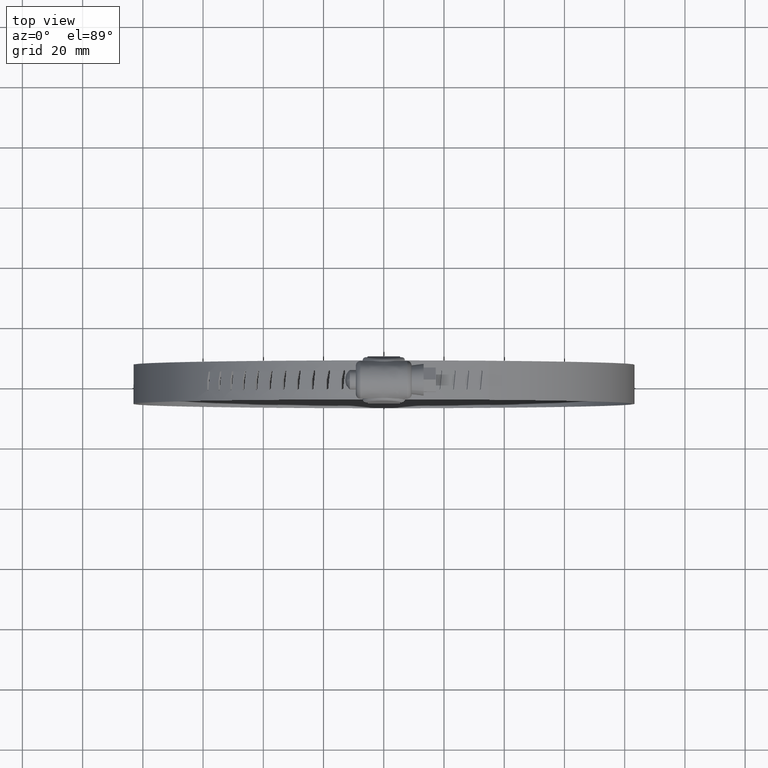
[diagram: clean part render]
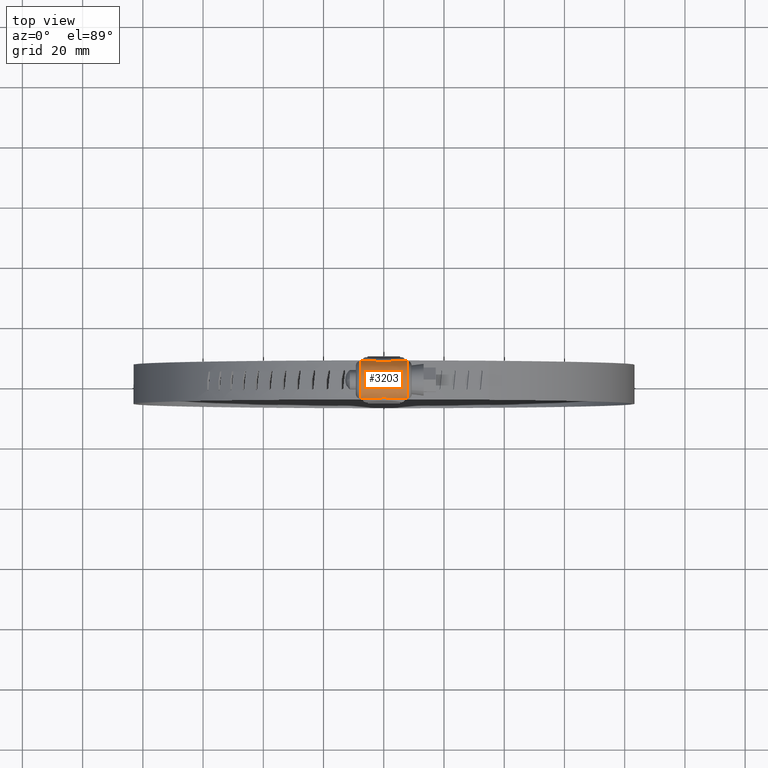
[diagram: same view with one face highlighted and labeled with its STEP entity id]
A machine part, top view. The second image highlights one B-rep face of the part: STEP entity #3203.
In plain terms, the highlighted face is a freeform B-spline surface patch.
Its self-contained STEP definition (entity closure, byte-faithful):
#1555=CARTESIAN_POINT('',(-3.766983245140355,-6.249999633170980,16.577121365332999));
#1556=VERTEX_POINT('',#1555);
#1666=CARTESIAN_POINT('',(3.766983245140355,-6.249999633170980,16.577121365332999));
#1667=VERTEX_POINT('',#1666);
#1675=CARTESIAN_POINT('',(-3.766983245140355,-6.249999633170980,16.577121365332999));
#1676=CARTESIAN_POINT('',(-3.478831496909463,-6.229233364205876,16.739128154655241));
#1677=CARTESIAN_POINT('',(-3.183300914378316,-6.204570008767342,16.882148632117168));
#1678=CARTESIAN_POINT('',(-2.576808892005547,-6.155228093785371,17.130036402120751));
#1679=CARTESIAN_POINT('',(-2.265836634976381,-6.130547265610534,17.234876518080021));
#1680=CARTESIAN_POINT('',(-1.866693869858923,-6.103751019367197,17.340919599546389));
#1681=CARTESIAN_POINT('',(-1.786486061357972,-6.098601892761600,17.360832235081901));
#1682=CARTESIAN_POINT('',(-1.626024433981459,-6.088846631766009,17.397907521513719));
#1683=CARTESIAN_POINT('',(-1.545665445436081,-6.084233341677489,17.415098594033861));
#1684=CARTESIAN_POINT('',(-1.304205280765513,-6.071283367227001,17.462673344400940));
#1685=CARTESIAN_POINT('',(-1.142721123573348,-6.063841070201703,17.489062200122419));
#1686=CARTESIAN_POINT('',(-0.656740159557208,-6.045693866015511,17.552452619586020));
#1687=CARTESIAN_POINT('',(-0.330719706065374,-6.039235105378521,17.573749912531952));
#1688=CARTESIAN_POINT('',(0.161419786626403,-6.039184386857341,17.573920279852860));
#1689=CARTESIAN_POINT('',(0.325985564198005,-6.040757096750824,17.568663909435760));
#1690=CARTESIAN_POINT('',(0.573631993009526,-6.045493593546023,17.552599085312352));
#1691=CARTESIAN_POINT('',(0.656241352251390,-6.047467871330164,17.545878086249040));
#1692=CARTESIAN_POINT('',(0.820475667525163,-6.052146371881373,17.529813216404978));
#1693=CARTESIAN_POINT('',(0.902253417529042,-6.054853191231874,17.520460500731989));
#1694=CARTESIAN_POINT('',(1.309472620170547,-6.070102513587345,17.467179843144940));
#1695=CARTESIAN_POINT('',(1.629917328613110,-6.087864840067938,17.403768142886481));
#1696=CARTESIAN_POINT('',(2.260627271324118,-6.130187882777850,17.236317853900928));
#1697=CARTESIAN_POINT('',(2.570888658853245,-6.154751397064583,17.132263968381999));
#1698=CARTESIAN_POINT('',(3.028839962946760,-6.192001216301294,16.945374784512900));
#1699=CARTESIAN_POINT('',(3.179777303179230,-6.204428908061730,16.878107182095970));
#1700=CARTESIAN_POINT('',(3.476686108309584,-6.228226204638982,16.734530296358798));
#1701=CARTESIAN_POINT('',(3.622917516897374,-6.239617229855899,16.658119055673680));
#1702=CARTESIAN_POINT('',(3.766983245140355,-6.249999633170980,16.577121365332999));
#1703=B_SPLINE_CURVE_WITH_KNOTS('',3,(#1675,#1676,#1677,#1678,#1679,#1680,#1681,#1682,#1683,#1684,#1685,#1686,#1687,#1688,#1689,#1690,#1691,#1692,#1693,#1694,#1695,#1696,#1697,#1698,#1699,#1700,#1701,#1702),.UNSPECIFIED.,.F.,.U.,(4,2,2,2,2,2,2,2,2,2,2,2,2,4),(0.000000039906754,0.125000000000001,0.250000000000001,0.281250000000001,0.312500000000001,0.375000000000001,0.500000000000001,0.562500000000001,0.593750000000001,0.625000000000000,0.750000000000000,0.875000000000000,0.937500000000000,0.999999982435041),.UNSPECIFIED.);
#1704=EDGE_CURVE('',#1556,#1667,#1703,.T.);
#1895=CARTESIAN_POINT('',(-3.767731017053410,6.249999633170980,16.577121365332999));
#1896=VERTEX_POINT('',#1895);
#1904=CARTESIAN_POINT('',(3.767731017053410,6.249999633170980,16.577121365332999));
#1905=VERTEX_POINT('',#1904);
#1906=CARTESIAN_POINT('',(3.767731017053410,6.249999633170980,16.577121365332999));
#1907=CARTESIAN_POINT('',(3.479497733507518,6.229237709105721,16.739094258291651));
#1908=CARTESIAN_POINT('',(3.183884050679524,6.204583222070062,16.882071151559519));
#1909=CARTESIAN_POINT('',(2.577243934754033,6.155257050299552,17.129902017543969));
#1910=CARTESIAN_POINT('',(2.266206147951572,6.130582696073145,17.234727400421061));
#1911=CARTESIAN_POINT('',(1.866991587071622,6.103790234875439,17.340766625409820));
#1912=CARTESIAN_POINT('',(1.786771470837745,6.098641773924828,17.360678763914390));
#1913=CARTESIAN_POINT('',(1.626284023453253,6.088887352445290,17.397754646818960));
#1914=CARTESIAN_POINT('',(1.545912167912042,6.084274283725710,17.414946625872581));
#1915=CARTESIAN_POINT('',(1.304413467685331,6.071324521135703,17.462525250646319));
#1916=CARTESIAN_POINT('',(1.142903704963588,6.063881763437935,17.488918202284239));
#1917=CARTESIAN_POINT('',(0.656845720759579,6.045732683460419,17.552320710697689));
#1918=CARTESIAN_POINT('',(0.330773580215899,6.039272260056391,17.573625094178219));
#1919=CARTESIAN_POINT('',(-0.161444854682112,6.039221514861135,17.573795563976041));
#1920=CARTESIAN_POINT('',(-0.326037165918512,6.040794574774885,17.568537633646770));
#1921=CARTESIAN_POINT('',(-0.573723678317318,6.045531948734165,17.552468569044731));
#1922=CARTESIAN_POINT('',(-0.656346915220894,6.047506583847865,17.545745815254921));
#1923=CARTESIAN_POINT('',(-0.820608736505639,6.052185828560140,17.529677062264259));
#1924=CARTESIAN_POINT('',(-0.902400225254582,6.054893035526168,17.520322214310770));
#1925=CARTESIAN_POINT('',(-1.309688241338812,6.070144131077192,17.467030690373669));
#1926=CARTESIAN_POINT('',(-1.630188360697988,6.087907219618561,17.403609516303838));
#1927=CARTESIAN_POINT('',(-2.261015828429809,6.130224851233542,17.236162525183840));
#1928=CARTESIAN_POINT('',(-2.571339628588592,6.154781890041164,17.132122576332680));
#1929=CARTESIAN_POINT('',(-3.029391561703454,6.192018955972971,16.945279975485011));
#1930=CARTESIAN_POINT('',(-3.180366883374803,6.204442304778198,16.878030458831791));
#1931=CARTESIAN_POINT('',(-3.477353567144340,6.228231820699066,16.734492306269210));
#1932=CARTESIAN_POINT('',(-3.623625442391634,6.239619468304403,16.658101592606808));
#1933=CARTESIAN_POINT('',(-3.767731017053410,6.249999633170980,16.577121365332999));
#1934=B_SPLINE_CURVE_WITH_KNOTS('',3,(#1906,#1907,#1908,#1909,#1910,#1911,#1912,#1913,#1914,#1915,#1916,#1917,#1918,#1919,#1920,#1921,#1922,#1923,#1924,#1925,#1926,#1927,#1928,#1929,#1930,#1931,#1932,#1933),.UNSPECIFIED.,.F.,.U.,(4,2,2,2,2,2,2,2,2,2,2,2,2,4),(0.000000039879375,0.125000000000000,0.250000000000001,0.281250000000000,0.312500000000000,0.375000000000000,0.500000000000000,0.562500000000000,0.593749999999999,0.624999999999999,0.749999999999999,0.875000000000000,0.937500000000000,0.999999982445228),.UNSPECIFIED.);
#1935=EDGE_CURVE('',#1905,#1896,#1934,.T.);
#2433=CARTESIAN_POINT('',(7.750000000000000,6.249999633170980,16.577121365332999));
#2434=VERTEX_POINT('',#2433);
#2491=CARTESIAN_POINT('',(7.750000000000000,-6.249999633170980,16.577121365332999));
#2492=VERTEX_POINT('',#2491);
#2524=CARTESIAN_POINT('',(7.750000000000000,-6.249999633170980,16.577121365332999));
#2525=CARTESIAN_POINT('',(7.750000000000000,-6.160149003111657,17.281989750208691));
#2526=CARTESIAN_POINT('',(7.750000000000003,-5.822298612794466,18.384429088343708));
#2527=CARTESIAN_POINT('',(7.749999999999989,-4.875795294081713,19.870272248243971));
#2528=CARTESIAN_POINT('',(7.750000000000050,-3.690860906587048,20.986464371187470));
#2529=CARTESIAN_POINT('',(7.749999999999955,-2.286914767839592,21.705751675127161));
#2530=CARTESIAN_POINT('',(7.750000000000056,-0.811538626558837,22.079451644417340));
#2531=CARTESIAN_POINT('',(7.749999999999951,0.430902879202265,22.107505241543159));
#2532=CARTESIAN_POINT('',(7.750000000000076,1.738622420004578,21.868866141646770));
#2533=CARTESIAN_POINT('',(7.749999999999797,2.987513393745761,21.397818275831749));
#2534=CARTESIAN_POINT('',(7.750000000000069,4.242326997086694,20.522873782677269));
#2535=CARTESIAN_POINT('',(7.749999999999986,5.116087476507776,19.513852140765760));
#2536=CARTESIAN_POINT('',(7.750000000000010,5.864548292571203,18.246578816985100));
#2537=CARTESIAN_POINT('',(7.750000000000012,6.160147386036956,17.281995041353959));
#2538=CARTESIAN_POINT('',(7.750000000000000,6.249999633170980,16.577121365332999));
#2539=B_SPLINE_CURVE_WITH_KNOTS('',3,(#2524,#2525,#2526,#2527,#2528,#2529,#2530,#2531,#2532,#2533,#2534,#2535,#2536,#2537,#2538),.UNSPECIFIED.,.F.,.U.,(4,1,1,1,1,1,1,1,1,1,1,1,4),(-0.000008353906985,2.131555705054677,3.410496072027353,5.257877987440351,6.963143258945800,8.100038348479368,9.805093654843674,10.657753049479039,12.078835391715060,13.784132601768050,15.205217852779290,16.057848321248120,18.189362197542980),.UNSPECIFIED.);
#2540=EDGE_CURVE('',#2492,#2434,#2539,.T.);
#2624=CARTESIAN_POINT('',(-7.749999999999810,6.249999633170980,16.577121365332999));
#2625=VERTEX_POINT('',#2624);
#2681=CARTESIAN_POINT('',(-7.750000000000000,-6.249999633170980,16.577121365332999));
#2682=VERTEX_POINT('',#2681);
#2693=CARTESIAN_POINT('',(-7.749999999999810,6.249999633170980,16.577121365332999));
#2694=CARTESIAN_POINT('',(-7.749999999999816,6.160148982264708,17.281989723841761));
#2695=CARTESIAN_POINT('',(-7.749999999999854,5.822298667709293,18.384429046265389));
#2696=CARTESIAN_POINT('',(-7.749999999999882,4.875795239512041,19.870272707008020));
#2697=CARTESIAN_POINT('',(-7.749999999999965,3.690861311668080,20.986462903538929));
#2698=CARTESIAN_POINT('',(-7.749999999999905,2.286914830675124,21.705752130912259));
#2699=CARTESIAN_POINT('',(-7.750000000000048,0.811538465439366,22.079451686553249));
#2700=CARTESIAN_POINT('',(-7.749999999999951,-0.430902727248914,22.107505134812900));
#2701=CARTESIAN_POINT('',(-7.750000000000097,-1.738622853090017,21.868866328187149));
#2702=CARTESIAN_POINT('',(-7.749999999999828,-2.987510747219607,21.397817178106880));
#2703=CARTESIAN_POINT('',(-7.750000000000102,-4.242334197851259,20.522876768419220));
#2704=CARTESIAN_POINT('',(-7.750000000000022,-5.116090313047544,19.513851966680619));
#2705=CARTESIAN_POINT('',(-7.750000000000018,-5.864516329078523,18.246571072905692));
#2706=CARTESIAN_POINT('',(-7.750000000000043,-6.160187627664459,17.282005807887320));
#2707=CARTESIAN_POINT('',(-7.750000000000000,-6.249999633170980,16.577121365332999));
#2708=B_SPLINE_CURVE_WITH_KNOTS('',3,(#2693,#2694,#2695,#2696,#2697,#2698,#2699,#2700,#2701,#2702,#2703,#2704,#2705,#2706,#2707),.UNSPECIFIED.,.F.,.U.,(4,1,1,1,1,1,1,1,1,1,1,1,4),(-0.000008353906985,2.131555705054677,3.410496072027353,5.257877987440351,6.963143258945800,8.100038348479368,9.805093654843674,10.657753049479039,12.078835391715060,13.784132601768050,15.205217852779290,16.057848321248120,18.189362197542980),.UNSPECIFIED.);
#2709=EDGE_CURVE('',#2625,#2682,#2708,.T.);
#3135=CARTESIAN_POINT('',(7.750000000000000,-6.249999633170980,16.577121365332999));
#3136=CARTESIAN_POINT('',(3.766983245140355,-6.249999633170980,16.577121365332999));
#3137=QUASI_UNIFORM_CURVE('',1,(#3135,#3136),.UNSPECIFIED.,.F.,.U.);
#3138=EDGE_CURVE('',#2492,#1667,#3137,.T.);
#3157=CARTESIAN_POINT('',(-3.766983245140355,-6.249999633170980,16.577121365332999));
#3158=CARTESIAN_POINT('',(-7.750000000000000,-6.249999633170980,16.577121365332999));
#3159=QUASI_UNIFORM_CURVE('',1,(#3157,#3158),.UNSPECIFIED.,.F.,.U.);
#3160=EDGE_CURVE('',#1556,#2682,#3159,.T.);
#3167=CARTESIAN_POINT('',(8.137500000000001,6.256752797267127,16.522550016851341));
#3168=CARTESIAN_POINT('',(-8.147187500000037,6.256752797267127,16.522550016851341));
#3169=CARTESIAN_POINT('',(8.137500000000001,5.578620881440008,22.205784116358405));
#3170=CARTESIAN_POINT('',(-8.147187500000037,5.578620881440008,22.205784116358405));
#3171=CARTESIAN_POINT('',(8.137500000000001,-0.143444799420466,22.075488034368480));
#3172=CARTESIAN_POINT('',(-8.147187500000037,-0.143444799420466,22.075488034368480));
#3173=CARTESIAN_POINT('',(8.137500000000001,-5.865510480280938,21.945191952378561));
#3174=CARTESIAN_POINT('',(-8.147187500000037,-5.865510480280938,21.945191952378561));
#3175=CARTESIAN_POINT('',(8.137500000000001,-6.284249946758260,16.236981200813990));
#3176=CARTESIAN_POINT('',(-8.147187500000037,-6.284249946758260,16.236981200813990));
#3184=(BOUNDED_SURFACE()B_SPLINE_SURFACE(1,2,((#3167,#3169,#3171,#3173,#3175),(#3168,#3170,#3172,#3174,#3176)),.UNSPECIFIED.,.F.,.F.,.U.)B_SPLINE_SURFACE_WITH_KNOTS((2,2),(3,2,3),(0.0,16.284687500000040),(0.0,9.738261264178698,19.476522528357400),.UNSPECIFIED.)GEOMETRIC_REPRESENTATION_ITEM()RATIONAL_B_SPLINE_SURFACE(((1.0,0.740218127486832,1.0,0.740218127486832,1.0),(1.0,0.740218127486832,1.0,0.740218127486832,1.0)))REPRESENTATION_ITEM('')SURFACE());
#3185=CARTESIAN_POINT('',(7.750000000000000,6.249999633170980,16.577121365332999));
#3186=CARTESIAN_POINT('',(3.767731017053410,6.249999633170980,16.577121365332999));
#3187=QUASI_UNIFORM_CURVE('',1,(#3185,#3186),.UNSPECIFIED.,.F.,.U.);
#3188=EDGE_CURVE('',#2434,#1905,#3187,.T.);
#3189=ORIENTED_EDGE('',*,*,#3188,.T.);
#3190=ORIENTED_EDGE('',*,*,#1935,.T.);
#3191=CARTESIAN_POINT('',(-3.767731017053410,6.249999633170980,16.577121365332999));
#3192=CARTESIAN_POINT('',(-7.749999999999810,6.249999633170980,16.577121365332999));
#3193=QUASI_UNIFORM_CURVE('',1,(#3191,#3192),.UNSPECIFIED.,.F.,.U.);
#3194=EDGE_CURVE('',#1896,#2625,#3193,.T.);
#3195=ORIENTED_EDGE('',*,*,#3194,.T.);
#3196=ORIENTED_EDGE('',*,*,#2709,.T.);
#3197=ORIENTED_EDGE('',*,*,#3160,.F.);
#3198=ORIENTED_EDGE('',*,*,#1704,.T.);
#3199=ORIENTED_EDGE('',*,*,#3138,.F.);
#3200=ORIENTED_EDGE('',*,*,#2540,.T.);
#3201=EDGE_LOOP('',(#3189,#3190,#3195,#3196,#3197,#3198,#3199,#3200));
#3202=FACE_OUTER_BOUND('',#3201,.T.);
#3203=ADVANCED_FACE('',(#3202),#3184,.T.);